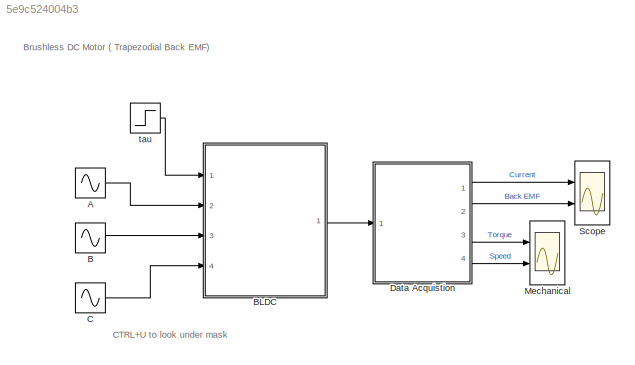
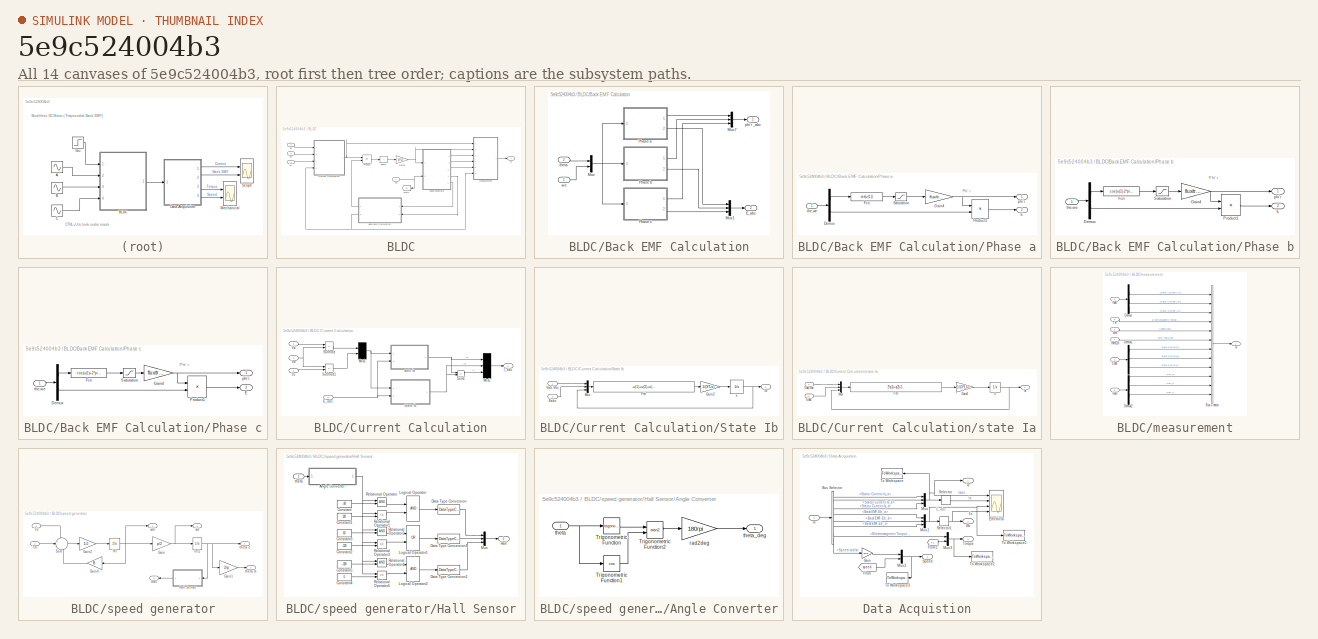
[diagram: thumbnail index - all 14 canvases of the model, root first then tree order]
MODEL slx_5e9c524004b3
KIND model
CONFIG AbsTol = auto
CONFIG EnableMultiTasking = off
CONFIG FixedStep = auto
CONFIG MaxStep = auto
CONFIG MinStep = auto
CONFIG RelTol = 1e-3
CONFIG SampleTimeConstraint = Unconstrained
CONFIG SolverName = VariableStepAuto
CONFIG StartTime = 0.0
CONFIG StopTime = 10.0
BLOCK [Sin] A
  Amplitude = 220*sqrt(2)
  Frequency = 2*pi*50
  Ports = [0, 1]
  SampleTime = Ts
BLOCK [Sin] B
  Amplitude = 220*sqrt(2)
  Frequency = 2*pi*50
  Phase = -2*pi/3
  Ports = [0, 1]
  SampleTime = Ts
BLOCK [SubSystem] BLDC
  Ports = [4, 1]
  RequestExecContextInheritance = off
BLOCK [SubSystem] BLDC/Back EMF Calculation
  Ports = [2, 2]
  RequestExecContextInheritance = off
BLOCK [Outport] BLDC/Back EMF Calculation/E_abc
  Port = 2
BLOCK [Mux] BLDC/Back EMF Calculation/Mux
  DisplayOption = bar
  Inputs = 2
  Ports = [2, 1]
BLOCK [Mux] BLDC/Back EMF Calculation/Mux1
  DisplayOption = bar
  Inputs = 3
  Ports = [3, 1]
BLOCK [Mux] BLDC/Back EMF Calculation/Mux7
  DisplayOption = bar
  Inputs = 3
  Ports = [3, 1]
BLOCK [SubSystem] BLDC/Back EMF Calculation/Phase a
  Ports = [1, 2]
  RequestExecContextInheritance = off
BLOCK [Demux] BLDC/Back EMF Calculation/Phase a/Demux
  DisplayOption = none
  Outputs = 2
  Ports = [1, 2]
BLOCK [Outport] BLDC/Back EMF Calculation/Phase a/E
  Port = 2
BLOCK [Fcn] BLDC/Back EMF Calculation/Phase a/Fcn
  Expr = cos(u(1))
BLOCK [Gain] BLDC/Back EMF Calculation/Phase a/Gain4
  Gain = flux/trap
  OutDataTypeStr = Inherit: Same as input
  ParamDataTypeStr = Inherit: Same as input
  SaturateOnIntegerOverflow = on
BLOCK [Product] BLDC/Back EMF Calculation/Phase a/Product1
  OutDataTypeStr = Inherit: Same as first input
  Ports = [2, 1]
  SaturateOnIntegerOverflow = on
BLOCK [Saturate] BLDC/Back EMF Calculation/Phase a/Saturation
  LowerLimit = -trap
  UpperLimit = trap
BLOCK [Outport] BLDC/Back EMF Calculation/Phase a/phi'r
BLOCK [Inport] BLDC/Back EMF Calculation/Phase a/the,we
BLOCK [SubSystem] BLDC/Back EMF Calculation/Phase b
  Ports = [1, 2]
  RequestExecContextInheritance = off
BLOCK [Demux] BLDC/Back EMF Calculation/Phase b/Demux
  DisplayOption = none
  Outputs = 2
  Ports = [1, 2]
BLOCK [Outport] BLDC/Back EMF Calculation/Phase b/E
  Port = 2
BLOCK [Fcn] BLDC/Back EMF Calculation/Phase b/Fcn
  Expr = cos(u(1)-2*pi/3)
BLOCK [Gain] BLDC/Back EMF Calculation/Phase b/Gain4
  Gain = flux/trap
  OutDataTypeStr = Inherit: Same as input
  ParamDataTypeStr = Inherit: Same as input
  SaturateOnIntegerOverflow = on
BLOCK [Product] BLDC/Back EMF Calculation/Phase b/Product1
  OutDataTypeStr = Inherit: Same as first input
  Ports = [2, 1]
  SaturateOnIntegerOverflow = on
BLOCK [Saturate] BLDC/Back EMF Calculation/Phase b/Saturation
  LowerLimit = -trap
  UpperLimit = trap
BLOCK [Outport] BLDC/Back EMF Calculation/Phase b/phi'r
BLOCK [Inport] BLDC/Back EMF Calculation/Phase b/the,we
BLOCK [SubSystem] BLDC/Back EMF Calculation/Phase c
  Ports = [1, 2]
  RequestExecContextInheritance = off
BLOCK [Demux] BLDC/Back EMF Calculation/Phase c/Demux
  DisplayOption = none
  Outputs = 2
  Ports = [1, 2]
BLOCK [Outport] BLDC/Back EMF Calculation/Phase c/E
  Port = 2
BLOCK [Fcn] BLDC/Back EMF Calculation/Phase c/Fcn
  Expr = cos(u(1)+2*pi/3)
BLOCK [Gain] BLDC/Back EMF Calculation/Phase c/Gain4
  Gain = flux/trap
  OutDataTypeStr = Inherit: Same as input
  ParamDataTypeStr = Inherit: Same as input
  SaturateOnIntegerOverflow = on
BLOCK [Product] BLDC/Back EMF Calculation/Phase c/Product1
  OutDataTypeStr = Inherit: Same as first input
  Ports = [2, 1]
  SaturateOnIntegerOverflow = on
BLOCK [Saturate] BLDC/Back EMF Calculation/Phase c/Saturation
  LowerLimit = -trap
  UpperLimit = trap
BLOCK [Outport] BLDC/Back EMF Calculation/Phase c/phi'r
BLOCK [Inport] BLDC/Back EMF Calculation/Phase c/the,we
BLOCK [Outport] BLDC/Back EMF Calculation/phi'r _abc
BLOCK [Inport] BLDC/Back EMF Calculation/theta
  Port = 2
BLOCK [Inport] BLDC/Back EMF Calculation/we
BLOCK [SubSystem] BLDC/Current Calculation
  Ports = [4, 1]
  RequestExecContextInheritance = off
BLOCK [Inport] BLDC/Current Calculation/E_abc
  Port = 4
BLOCK [Outport] BLDC/Current Calculation/I_abc
BLOCK [Mux] BLDC/Current Calculation/Mux2
  DisplayOption = signals
  Inputs = 2
  Ports = [2, 1]
BLOCK [Mux] BLDC/Current Calculation/Mux5
  DisplayOption = signals
  Inputs = 3
  Ports = [3, 1]
BLOCK [SubSystem] BLDC/Current Calculation/State Ib
  Ports = [2, 1]
  RequestExecContextInheritance = off
BLOCK [Inport] BLDC/Current Calculation/State Ib/Eabc
  Port = 2
BLOCK [Fcn] BLDC/Current Calculation/State Ib/Fcn
  Expr = -u(1)+u(2)+u(3)-2*u(4)+u(5)-3*Rs*u(6)
BLOCK [Gain] BLDC/Current Calculation/State Ib/Gain2
  Gain = 1/(3*Ls)
  OutDataTypeStr = Inherit: Same as input
  ParamDataTypeStr = Inherit: Same as input
  SaturateOnIntegerOverflow = on
BLOCK [Outport] BLDC/Current Calculation/State Ib/Ib
BLOCK [Mux] BLDC/Current Calculation/State Ib/Mux
  DisplayOption = bar
  Inputs = 3
  Ports = [3, 1]
BLOCK [Inport] BLDC/Current Calculation/State Ib/Vab,Vbc
BLOCK [Integrator] BLDC/Current Calculation/State Ib/s 
  Ports = [1, 1]
BLOCK [Sum] BLDC/Current Calculation/Subtract
  IconShape = rectangular
  Inputs = +-
  Ports = [2, 1]
BLOCK [Sum] BLDC/Current Calculation/Subtract1
  IconShape = rectangular
  Inputs = +-
  Ports = [2, 1]
BLOCK [Sum] BLDC/Current Calculation/Sum1
  IconShape = rectangular
  Inputs = --
  Ports = [2, 1]
  SaturateOnIntegerOverflow = on
BLOCK [Inport] BLDC/Current Calculation/Va
BLOCK [Inport] BLDC/Current Calculation/Vb
  Port = 2
BLOCK [Inport] BLDC/Current Calculation/Vc
  Port = 3
BLOCK [SubSystem] BLDC/Current Calculation/state Ia
  Ports = [2, 1]
  RequestExecContextInheritance = off
BLOCK [Inport] BLDC/Current Calculation/state Ia/Eabc
  Port = 2
BLOCK [Fcn] BLDC/Current Calculation/state Ia/Fcn
  Expr = 2*u(1)+u(2)-2*u(3)+u(4)+u(5)-3*Rs*u(6)
BLOCK [Gain] BLDC/Current Calculation/state Ia/Gain2
  Gain = 1/(3*Ls)
  OutDataTypeStr = Inherit: Same as input
  ParamDataTypeStr = Inherit: Same as input
  SaturateOnIntegerOverflow = on
BLOCK [Outport] BLDC/Current Calculation/state Ia/Ia
BLOCK [Mux] BLDC/Current Calculation/state Ia/Mux
  DisplayOption = bar
  Inputs = 3
  Ports = [3, 1]
BLOCK [Inport] BLDC/Current Calculation/state Ia/Vab,Vbc
BLOCK [Integrator] BLDC/Current Calculation/state Ia/s 
  Ports = [1, 1]
BLOCK [Gain] BLDC/Gain3
  Gain = p/2
  OutDataTypeStr = Inherit: Same as input
  ParamDataTypeStr = Inherit: Same as input
  SaturateOnIntegerOverflow = on
BLOCK [Goto] BLDC/Goto
  GotoTag = TL
  TagVisibility = global
BLOCK [Product] BLDC/Product
  OutDataTypeStr = Inherit: Same as first input
  Ports = [2, 1]
  SaturateOnIntegerOverflow = on
BLOCK [Sum] BLDC/Sum2
  IconShape = rectangular
  Inputs = +
  Ports = [1, 1]
  SaturateOnIntegerOverflow = on
BLOCK [Inport] BLDC/Tm
BLOCK [Inport] BLDC/Va
  Port = 2
BLOCK [Inport] BLDC/Vb
  Port = 3
BLOCK [Inport] BLDC/Vc
  Port = 4
BLOCK [Outport] BLDC/m
BLOCK [SubSystem] BLDC/measurement
  Ports = [6, 1]
  RequestExecContextInheritance = off
BLOCK [BusCreator] BLDC/measurement/Bus Creator
  DisplayOption = bar
  InheritFromInputs = on
  Inputs = 12
  Ports = [12, 1]
BLOCK [Demux] BLDC/measurement/Demux
  Outputs = 3
  Ports = [1, 3]
BLOCK [Demux] BLDC/measurement/Demux1
  Outputs = 3
  Ports = [1, 3]
BLOCK [Demux] BLDC/measurement/Demux2
  Outputs = 3
  Ports = [1, 3]
BLOCK [Inport] BLDC/measurement/Eabc
  Port = 6
BLOCK [Inport] BLDC/measurement/Hall
  Port = 5
BLOCK [Inport] BLDC/measurement/Iabc
BLOCK [Inport] BLDC/measurement/Te
  Port = 2
BLOCK [Outport] BLDC/measurement/m
BLOCK [Inport] BLDC/measurement/theta_m
  Port = 4
BLOCK [Inport] BLDC/measurement/wm
  Port = 3
BLOCK [SubSystem] BLDC/speed generator
  Ports = [2, 5]
  RequestExecContextInheritance = off
BLOCK [Gain] BLDC/speed generator/Gain
  Gain = p/2
  OutDataTypeStr = Inherit: Same as input
  ParamDataTypeStr = Inherit: Same as input
  SaturateOnIntegerOverflow = on
BLOCK [Gain] BLDC/speed generator/Gain1
  Gain = 2/p
  OutDataTypeStr = Inherit: Same as input
  ParamDataTypeStr = Inherit: Same as input
  SaturateOnIntegerOverflow = on
BLOCK [Gain] BLDC/speed generator/Gain2
  Gain = 1/J
  OutDataTypeStr = Inherit: Same as input
  ParamDataTypeStr = Inherit: Same as input
  SaturateOnIntegerOverflow = on
BLOCK [Gain] BLDC/speed generator/Gain4
  Gain = B
  OutDataTypeStr = Inherit: Same as input
  ParamDataTypeStr = Inherit: Same as input
  SaturateOnIntegerOverflow = on
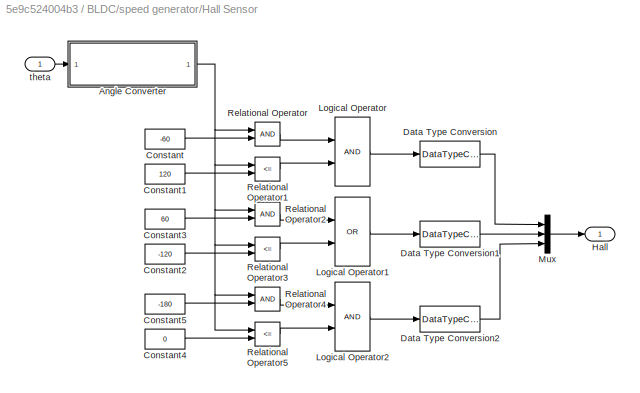
BLOCK [SubSystem] BLDC/speed generator/Hall Sensor
  Ports = [1, 1]
  RequestExecContextInheritance = off
BLOCK [SubSystem] BLDC/speed generator/Hall Sensor/Angle Converter
  Ports = [1, 1]
  RequestExecContextInheritance = off
BLOCK [Trigonometry] BLDC/speed generator/Hall Sensor/Angle Converter/Trigonometric Function
  Ports = [1, 1]
BLOCK [Trigonometry] BLDC/speed generator/Hall Sensor/Angle Converter/Trigonometric Function1
  Operator = cos
  Ports = [1, 1]
BLOCK [Trigonometry] BLDC/speed generator/Hall Sensor/Angle Converter/Trigonometric Function2
  Operator = atan2
  Ports = [2, 1]
BLOCK [Gain] BLDC/speed generator/Hall Sensor/Angle Converter/rad2deg
  Gain = 180/pi
BLOCK [Inport] BLDC/speed generator/Hall Sensor/Angle Converter/theta
BLOCK [Outport] BLDC/speed generator/Hall Sensor/Angle Converter/theta_deg
BLOCK [Constant] BLDC/speed generator/Hall Sensor/Constant
  Value = -60
BLOCK [Constant] BLDC/speed generator/Hall Sensor/Constant1
  Value = 120
BLOCK [Constant] BLDC/speed generator/Hall Sensor/Constant2
  Value = -120
BLOCK [Constant] BLDC/speed generator/Hall Sensor/Constant3
  Value = 60
BLOCK [Constant] BLDC/speed generator/Hall Sensor/Constant4
  Value = 0
BLOCK [Constant] BLDC/speed generator/Hall Sensor/Constant5
  Value = -180
BLOCK [DataTypeConversion] BLDC/speed generator/Hall Sensor/Data Type Conversion
  RndMeth = Floor
  SaturateOnIntegerOverflow = off
BLOCK [DataTypeConversion] BLDC/speed generator/Hall Sensor/Data Type Conversion1
  RndMeth = Floor
  SaturateOnIntegerOverflow = off
BLOCK [DataTypeConversion] BLDC/speed generator/Hall Sensor/Data Type Conversion2
  RndMeth = Floor
  SaturateOnIntegerOverflow = off
BLOCK [Outport] BLDC/speed generator/Hall Sensor/Hall
BLOCK [Logic] BLDC/speed generator/Hall Sensor/Logical Operator
  AllPortsSameDT = off
  OutDataTypeStr = boolean
  Ports = [2, 1]
BLOCK [Logic] BLDC/speed generator/Hall Sensor/Logical Operator1
  AllPortsSameDT = off
  Operator = OR
  OutDataTypeStr = boolean
  Ports = [2, 1]
BLOCK [Logic] BLDC/speed generator/Hall Sensor/Logical Operator2
  AllPortsSameDT = off
  OutDataTypeStr = boolean
  Ports = [2, 1]
BLOCK [Mux] BLDC/speed generator/Hall Sensor/Mux
  DisplayOption = bar
  Inputs = 3
  Ports = [3, 1]
BLOCK [RelationalOperator] BLDC/speed generator/Hall Sensor/Relational Operator
  InputSameDT = off
  OutDataTypeStr = boolean
  Ports = [2, 1]
BLOCK [RelationalOperator] BLDC/speed generator/Hall Sensor/Relational Operator1
  InputSameDT = off
  Operator = <=
  OutDataTypeStr = boolean
  Ports = [2, 1]
BLOCK [RelationalOperator] BLDC/speed generator/Hall Sensor/Relational Operator2
  InputSameDT = off
  OutDataTypeStr = boolean
  Ports = [2, 1]
BLOCK [RelationalOperator] BLDC/speed generator/Hall Sensor/Relational Operator3
  InputSameDT = off
  Operator = <=
  OutDataTypeStr = boolean
  Ports = [2, 1]
BLOCK [RelationalOperator] BLDC/speed generator/Hall Sensor/Relational Operator4
  InputSameDT = off
  OutDataTypeStr = boolean
  Ports = [2, 1]
BLOCK [RelationalOperator] BLDC/speed generator/Hall Sensor/Relational Operator5
  InputSameDT = off
  Operator = <=
  OutDataTypeStr = boolean
  Ports = [2, 1]
BLOCK [Inport] BLDC/speed generator/Hall Sensor/theta
BLOCK [Integrator] BLDC/speed generator/Int
  Ports = [1, 1]
BLOCK [Integrator] BLDC/speed generator/Int1
  Ports = [1, 1]
BLOCK [Sum] BLDC/speed generator/Sum
  InputSameDT = on
  Inputs = +--
  OutDataTypeStr = Inherit: Same as first input
  Ports = [3, 1]
  SaturateOnIntegerOverflow = on
BLOCK [Inport] BLDC/speed generator/Te
BLOCK [Inport] BLDC/speed generator/Tm
  Port = 2
BLOCK [Outport] BLDC/speed generator/hall
  Port = 3
BLOCK [Outport] BLDC/speed generator/theta e
  Port = 4
BLOCK [Outport] BLDC/speed generator/theta m
  Port = 2
BLOCK [Outport] BLDC/speed generator/we
  Port = 5
BLOCK [Outport] BLDC/speed generator/wm
BLOCK [Sin] C
  Amplitude = 220*sqrt(2)
  Frequency = 2*pi*50
  Phase = 2*pi/3
  Ports = [0, 1]
  SampleTime = Ts
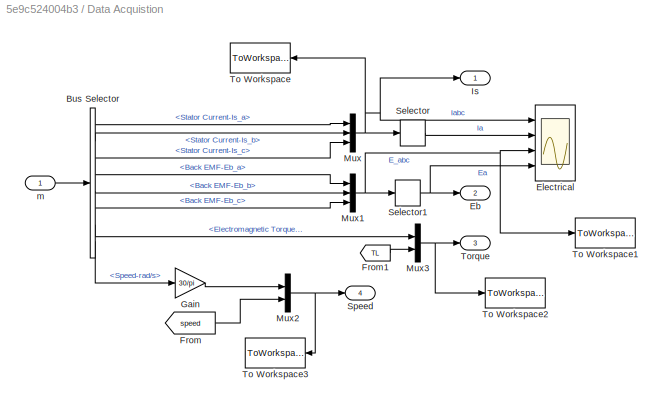
BLOCK [SubSystem] Data Acquistion
  Ports = [1, 4]
  RequestExecContextInheritance = off
BLOCK [BusSelector] Data Acquistion/Bus Selector
  OutputSignals = Stator Current-Is_a,Stator Current-Is_b,Stator Current-Is_c,Back EMF-Eb_a,Back EMF-Eb_b,Back EMF-Eb_c,Electromagnetic Torque-Nm,Speed-rad/s
  Ports = [1, 8]
BLOCK [Outport] Data Acquistion/Eb
  Port = 2
BLOCK [Scope] Data Acquistion/Electrical
  Floating = off
  NumInputPorts = 4
  Ports = [4]
  ScopeSpecificationString = C++SS(StrPVP('Location','[5, 49, 1371, 737]'),StrPVP('Open','off'),StrPVP('ZoomMode','yonly'),MxPVP('AxesTitles',54,'struct(''axes1'',''%<SignalLabel>'',''axes2'',''%<SignalLabel>'',''axes3'',''%<SignalLabel>'',''axes4'',''%<SignalLabel>'')'),StrPVP('TimeRange','1'),StrPVP('YMin','-40~-20~-100~-100'),StrPVP('YMax','40~30~100~100'),StrPVP('SaveName','ScopeData3'),StrPVP('DataFormat','StructureWithT...<+136ch>
BLOCK [From] Data Acquistion/From
  GotoTag = speed
BLOCK [From] Data Acquistion/From1
  GotoTag = TL
  TagVisibility = global
BLOCK [Gain] Data Acquistion/Gain
  Gain = 30/pi
BLOCK [Outport] Data Acquistion/Is
BLOCK [Mux] Data Acquistion/Mux
  DisplayOption = bar
  Inputs = 3
  Ports = [3, 1]
BLOCK [Mux] Data Acquistion/Mux1
  DisplayOption = bar
  Inputs = 3
  Ports = [3, 1]
BLOCK [Mux] Data Acquistion/Mux2
  DisplayOption = bar
  Inputs = 2
  Ports = [2, 1]
BLOCK [Mux] Data Acquistion/Mux3
  DisplayOption = bar
  Inputs = 2
  Ports = [2, 1]
BLOCK [Selector] Data Acquistion/Selector
  IndexOptions = Index vector (dialog)
  Indices = [1 ]
  InputPortWidth = 3
  OutputSizes = 1
  Ports = [1, 1]
BLOCK [Selector] Data Acquistion/Selector1
  IndexOptions = Index vector (dialog)
  Indices = [1 ]
  InputPortWidth = 3
  OutputSizes = 1
  Ports = [1, 1]
BLOCK [Outport] Data Acquistion/Speed
  Port = 4
BLOCK [ToWorkspace] Data Acquistion/To Workspace
  MaxDataPoints = inf
  Ports = [1]
  SampleTime = Ts
  VariableName = Iabc_pi
BLOCK [ToWorkspace] Data Acquistion/To Workspace1
  MaxDataPoints = inf
  Ports = [1]
  SampleTime = Ts
  VariableName = Eabc_pi
BLOCK [ToWorkspace] Data Acquistion/To Workspace2
  MaxDataPoints = inf
  Ports = [1]
  SampleTime = Ts
  VariableName = Te_pi
BLOCK [ToWorkspace] Data Acquistion/To Workspace3
  MaxDataPoints = inf
  Ports = [1]
  SampleTime = Ts
  VariableName = N_pi
BLOCK [Outport] Data Acquistion/Torque
  Port = 3
BLOCK [Inport] Data Acquistion/m
BLOCK [Scope] Mechanical
  Floating = off
  NumInputPorts = 2
  Ports = [2]
  ScopeSpecificationString = Simulink.scopes.TimeScopeBlockCfg('CurrentConfiguration', extmgr.ConfigurationSet(extmgr.Configuration('Core','General UI',true),extmgr.Configuration('Core','Source UI',true),extmgr.Configuration('Sources','WiredSimulink',true,'DataLoggingVariableName','ScopeData1','DataLoggingSaveFormat','StructureWithTime','DataLoggingDecimation','1','DataLoggingDecimateData',true),extmgr.Configuration('Visuals'...<+2355ch>
BLOCK [Scope] Scope
  Floating = off
  NumInputPorts = 2
  Ports = [2]
  ScopeSpecificationString = Simulink.scopes.TimeScopeBlockCfg('CurrentConfiguration', extmgr.ConfigurationSet(extmgr.Configuration('Core','General UI',true),extmgr.Configuration('Core','Source UI',true),extmgr.Configuration('Sources','WiredSimulink',true,'DataLoggingSaveFormat','StructureWithTime','DataLoggingDecimation','1','DataLoggingDecimateData',true),extmgr.Configuration('Visuals','Time Domain',true,'SerializedDisplays...<+2392ch>
BLOCK [Step] tau
  After = 10
  SampleTime = 0
  Time = 0.5
ANNOTATION (root): Brushless DC Motor ( Trapezodial Back EMF)
ANNOTATION (root): CTRL+U to look under mask
ANNOTATION BLDC/Back EMF Calculation/Phase a: Phi' r
ANNOTATION BLDC/Back EMF Calculation/Phase b: Phi' r
ANNOTATION BLDC/Back EMF Calculation/Phase c: Phi' r
LINE A:1 -> BLDC:2
LINE B:1 -> BLDC:3
LINE BLDC/Back EMF Calculation/Mux1:1 -> BLDC/Back EMF Calculation/E_abc:1
LINE BLDC/Back EMF Calculation/Mux7:1 -> BLDC/Back EMF Calculation/phi'r _abc:1
NET BLDC/Back EMF Calculation/Mux:1 -> BLDC/Back EMF Calculation/Phase a:1, BLDC/Back EMF Calculation/Phase b:1, BLDC/Back EMF Calculation/Phase c:1
LINE BLDC/Back EMF Calculation/Phase a/Demux:1 -> BLDC/Back EMF Calculation/Phase a/Fcn:1
LINE BLDC/Back EMF Calculation/Phase a/Demux:2 -> BLDC/Back EMF Calculation/Phase a/Product1:2
LINE BLDC/Back EMF Calculation/Phase a/Fcn:1 -> BLDC/Back EMF Calculation/Phase a/Saturation:1
NET BLDC/Back EMF Calculation/Phase a/Gain4:1 -> BLDC/Back EMF Calculation/Phase a/Product1:1, BLDC/Back EMF Calculation/Phase a/phi'r:1
LINE BLDC/Back EMF Calculation/Phase a/Product1:1 -> BLDC/Back EMF Calculation/Phase a/E:1
LINE BLDC/Back EMF Calculation/Phase a/Saturation:1 -> BLDC/Back EMF Calculation/Phase a/Gain4:1
LINE BLDC/Back EMF Calculation/Phase a/the,we:1 -> BLDC/Back EMF Calculation/Phase a/Demux:1
LINE BLDC/Back EMF Calculation/Phase a:1 -> BLDC/Back EMF Calculation/Mux7:1
LINE BLDC/Back EMF Calculation/Phase a:2 -> BLDC/Back EMF Calculation/Mux1:1
LINE BLDC/Back EMF Calculation/Phase b/Demux:1 -> BLDC/Back EMF Calculation/Phase b/Fcn:1
LINE BLDC/Back EMF Calculation/Phase b/Demux:2 -> BLDC/Back EMF Calculation/Phase b/Product1:2
LINE BLDC/Back EMF Calculation/Phase b/Fcn:1 -> BLDC/Back EMF Calculation/Phase b/Saturation:1
NET BLDC/Back EMF Calculation/Phase b/Gain4:1 -> BLDC/Back EMF Calculation/Phase b/Product1:1, BLDC/Back EMF Calculation/Phase b/phi'r:1
LINE BLDC/Back EMF Calculation/Phase b/Product1:1 -> BLDC/Back EMF Calculation/Phase b/E:1
LINE BLDC/Back EMF Calculation/Phase b/Saturation:1 -> BLDC/Back EMF Calculation/Phase b/Gain4:1
LINE BLDC/Back EMF Calculation/Phase b/the,we:1 -> BLDC/Back EMF Calculation/Phase b/Demux:1
LINE BLDC/Back EMF Calculation/Phase b:1 -> BLDC/Back EMF Calculation/Mux7:2
LINE BLDC/Back EMF Calculation/Phase b:2 -> BLDC/Back EMF Calculation/Mux1:2
LINE BLDC/Back EMF Calculation/Phase c/Demux:1 -> BLDC/Back EMF Calculation/Phase c/Fcn:1
LINE BLDC/Back EMF Calculation/Phase c/Demux:2 -> BLDC/Back EMF Calculation/Phase c/Product1:2
LINE BLDC/Back EMF Calculation/Phase c/Fcn:1 -> BLDC/Back EMF Calculation/Phase c/Saturation:1
NET BLDC/Back EMF Calculation/Phase c/Gain4:1 -> BLDC/Back EMF Calculation/Phase c/Product1:1, BLDC/Back EMF Calculation/Phase c/phi'r:1
LINE BLDC/Back EMF Calculation/Phase c/Product1:1 -> BLDC/Back EMF Calculation/Phase c/E:1
LINE BLDC/Back EMF Calculation/Phase c/Saturation:1 -> BLDC/Back EMF Calculation/Phase c/Gain4:1
LINE BLDC/Back EMF Calculation/Phase c/the,we:1 -> BLDC/Back EMF Calculation/Phase c/Demux:1
LINE BLDC/Back EMF Calculation/Phase c:1 -> BLDC/Back EMF Calculation/Mux7:3
LINE BLDC/Back EMF Calculation/Phase c:2 -> BLDC/Back EMF Calculation/Mux1:3
LINE BLDC/Back EMF Calculation/theta:1 -> BLDC/Back EMF Calculation/Mux:1
LINE BLDC/Back EMF Calculation/we:1 -> BLDC/Back EMF Calculation/Mux:2
LINE BLDC/Back EMF Calculation:1 -> BLDC/Product:2
NET BLDC/Back EMF Calculation:2 -> BLDC/Current Calculation:4, BLDC/measurement:6
NET BLDC/Current Calculation/E_abc:1 -> BLDC/Current Calculation/State Ib:2, BLDC/Current Calculation/state Ia:2
NET BLDC/Current Calculation/Mux2:1 -> BLDC/Current Calculation/State Ib:1, BLDC/Current Calculation/state Ia:1
LINE BLDC/Current Calculation/Mux5:1 -> BLDC/Current Calculation/I_abc:1
LINE BLDC/Current Calculation/State Ib/Eabc:1 -> BLDC/Current Calculation/State Ib/Mux:2
LINE BLDC/Current Calculation/State Ib/Fcn:1 -> BLDC/Current Calculation/State Ib/Gain2:1
LINE BLDC/Current Calculation/State Ib/Gain2:1 -> BLDC/Current Calculation/State Ib/s :1
LINE BLDC/Current Calculation/State Ib/Mux:1 -> BLDC/Current Calculation/State Ib/Fcn:1
LINE BLDC/Current Calculation/State Ib/Vab,Vbc:1 -> BLDC/Current Calculation/State Ib/Mux:1
NET BLDC/Current Calculation/State Ib/s :1 -> BLDC/Current Calculation/State Ib/Ib:1, BLDC/Current Calculation/State Ib/Mux:3
NET BLDC/Current Calculation/State Ib:1 -> BLDC/Current Calculation/Mux5:2, BLDC/Current Calculation/Sum1:2
LINE BLDC/Current Calculation/Subtract1:1 -> BLDC/Current Calculation/Mux2:2
LINE BLDC/Current Calculation/Subtract:1 -> BLDC/Current Calculation/Mux2:1
LINE BLDC/Current Calculation/Sum1:1 -> BLDC/Current Calculation/Mux5:3
LINE BLDC/Current Calculation/Va:1 -> BLDC/Current Calculation/Subtract:1
NET BLDC/Current Calculation/Vb:1 -> BLDC/Current Calculation/Subtract1:1, BLDC/Current Calculation/Subtract:2
LINE BLDC/Current Calculation/Vc:1 -> BLDC/Current Calculation/Subtract1:2
LINE BLDC/Current Calculation/state Ia/Eabc:1 -> BLDC/Current Calculation/state Ia/Mux:2
LINE BLDC/Current Calculation/state Ia/Fcn:1 -> BLDC/Current Calculation/state Ia/Gain2:1
LINE BLDC/Current Calculation/state Ia/Gain2:1 -> BLDC/Current Calculation/state Ia/s :1
LINE BLDC/Current Calculation/state Ia/Mux:1 -> BLDC/Current Calculation/state Ia/Fcn:1
LINE BLDC/Current Calculation/state Ia/Vab,Vbc:1 -> BLDC/Current Calculation/state Ia/Mux:1
NET BLDC/Current Calculation/state Ia/s :1 -> BLDC/Current Calculation/state Ia/Ia:1, BLDC/Current Calculation/state Ia/Mux:3
NET BLDC/Current Calculation/state Ia:1 -> BLDC/Current Calculation/Mux5:1, BLDC/Current Calculation/Sum1:1
NET BLDC/Current Calculation:1 -> BLDC/Product:1, BLDC/measurement:1
NET BLDC/Gain3:1 -> BLDC/measurement:2, BLDC/speed generator:1
LINE BLDC/Product:1 -> BLDC/Sum2:1
LINE BLDC/Sum2:1 -> BLDC/Gain3:1
NET BLDC/Tm:1 -> BLDC/Goto:1, BLDC/speed generator:2
LINE BLDC/Va:1 -> BLDC/Current Calculation:1
LINE BLDC/Vb:1 -> BLDC/Current Calculation:2
LINE BLDC/Vc:1 -> BLDC/Current Calculation:3
LINE BLDC/measurement/Bus Creator:1 -> BLDC/measurement/m:1
LINE BLDC/measurement/Demux1:1 -> BLDC/measurement/Bus Creator:7
LINE BLDC/measurement/Demux1:2 -> BLDC/measurement/Bus Creator:8
LINE BLDC/measurement/Demux1:3 -> BLDC/measurement/Bus Creator:9
LINE BLDC/measurement/Demux2:1 -> BLDC/measurement/Bus Creator:10
LINE BLDC/measurement/Demux2:2 -> BLDC/measurement/Bus Creator:11
LINE BLDC/measurement/Demux2:3 -> BLDC/measurement/Bus Creator:12
LINE BLDC/measurement/Demux:1 -> BLDC/measurement/Bus Creator:1
LINE BLDC/measurement/Demux:2 -> BLDC/measurement/Bus Creator:2
LINE BLDC/measurement/Demux:3 -> BLDC/measurement/Bus Creator:3
LINE BLDC/measurement/Eabc:1 -> BLDC/measurement/Demux1:1
LINE BLDC/measurement/Hall:1 -> BLDC/measurement/Demux2:1
LINE BLDC/measurement/Iabc:1 -> BLDC/measurement/Demux:1
LINE BLDC/measurement/Te:1 -> BLDC/measurement/Bus Creator:4
LINE BLDC/measurement/theta_m:1 -> BLDC/measurement/Bus Creator:6
LINE BLDC/measurement/wm:1 -> BLDC/measurement/Bus Creator:5
LINE BLDC/measurement:1 -> BLDC/m:1
LINE BLDC/speed generator/Gain1:1 -> BLDC/speed generator/theta m:1
LINE BLDC/speed generator/Gain2:1 -> BLDC/speed generator/Int:1
LINE BLDC/speed generator/Gain4:1 -> BLDC/speed generator/Sum:3
NET BLDC/speed generator/Gain:1 -> BLDC/speed generator/Int1:1, BLDC/speed generator/we:1
LINE BLDC/speed generator/Hall Sensor/Angle Converter/Trigonometric Function1:1 -> BLDC/speed generator/Hall Sensor/Angle Converter/Trigonometric Function2:2
LINE BLDC/speed generator/Hall Sensor/Angle Converter/Trigonometric Function2:1 -> BLDC/speed generator/Hall Sensor/Angle Converter/rad2deg:1
LINE BLDC/speed generator/Hall Sensor/Angle Converter/Trigonometric Function:1 -> BLDC/speed generator/Hall Sensor/Angle Converter/Trigonometric Function2:1
LINE BLDC/speed generator/Hall Sensor/Angle Converter/rad2deg:1 -> BLDC/speed generator/Hall Sensor/Angle Converter/theta_deg:1
NET BLDC/speed generator/Hall Sensor/Angle Converter/theta:1 -> BLDC/speed generator/Hall Sensor/Angle Converter/Trigonometric Function1:1, BLDC/speed generator/Hall Sensor/Angle Converter/Trigonometric Function:1
NET BLDC/speed generator/Hall Sensor/Angle Converter:1 -> BLDC/speed generator/Hall Sensor/Relational Operator1:1, BLDC/speed generator/Hall Sensor/Relational Operator2:1, BLDC/speed generator/Hall Sensor/Relational Operator3:1, BLDC/speed generator/Hall Sensor/Relational Operator4:1, BLDC/speed generator/Hall Sensor/Relational Operator5:1, BLDC/speed generator/Hall Sensor/Relational Operator:1
LINE BLDC/speed generator/Hall Sensor/Constant1:1 -> BLDC/speed generator/Hall Sensor/Relational Operator1:2
LINE BLDC/speed generator/Hall Sensor/Constant2:1 -> BLDC/speed generator/Hall Sensor/Relational Operator3:2
LINE BLDC/speed generator/Hall Sensor/Constant3:1 -> BLDC/speed generator/Hall Sensor/Relational Operator2:2
LINE BLDC/speed generator/Hall Sensor/Constant4:1 -> BLDC/speed generator/Hall Sensor/Relational Operator5:2
LINE BLDC/speed generator/Hall Sensor/Constant5:1 -> BLDC/speed generator/Hall Sensor/Relational Operator4:2
LINE BLDC/speed generator/Hall Sensor/Constant:1 -> BLDC/speed generator/Hall Sensor/Relational Operator:2
LINE BLDC/speed generator/Hall Sensor/Data Type Conversion1:1 -> BLDC/speed generator/Hall Sensor/Mux:2
LINE BLDC/speed generator/Hall Sensor/Data Type Conversion2:1 -> BLDC/speed generator/Hall Sensor/Mux:3
LINE BLDC/speed generator/Hall Sensor/Data Type Conversion:1 -> BLDC/speed generator/Hall Sensor/Mux:1
LINE BLDC/speed generator/Hall Sensor/Logical Operator1:1 -> BLDC/speed generator/Hall Sensor/Data Type Conversion1:1
LINE BLDC/speed generator/Hall Sensor/Logical Operator2:1 -> BLDC/speed generator/Hall Sensor/Data Type Conversion2:1
LINE BLDC/speed generator/Hall Sensor/Logical Operator:1 -> BLDC/speed generator/Hall Sensor/Data Type Conversion:1
LINE BLDC/speed generator/Hall Sensor/Mux:1 -> BLDC/speed generator/Hall Sensor/Hall:1
LINE BLDC/speed generator/Hall Sensor/Relational Operator1:1 -> BLDC/speed generator/Hall Sensor/Logical Operator:2
LINE BLDC/speed generator/Hall Sensor/Relational Operator2:1 -> BLDC/speed generator/Hall Sensor/Logical Operator1:1
LINE BLDC/speed generator/Hall Sensor/Relational Operator3:1 -> BLDC/speed generator/Hall Sensor/Logical Operator1:2
LINE BLDC/speed generator/Hall Sensor/Relational Operator4:1 -> BLDC/speed generator/Hall Sensor/Logical Operator2:1
LINE BLDC/speed generator/Hall Sensor/Relational Operator5:1 -> BLDC/speed generator/Hall Sensor/Logical Operator2:2
LINE BLDC/speed generator/Hall Sensor/Relational Operator:1 -> BLDC/speed generator/Hall Sensor/Logical Operator:1
LINE BLDC/speed generator/Hall Sensor/theta:1 -> BLDC/speed generator/Hall Sensor/Angle Converter:1
LINE BLDC/speed generator/Hall Sensor:1 -> BLDC/speed generator/hall:1
NET BLDC/speed generator/Int1:1 -> BLDC/speed generator/Gain1:1, BLDC/speed generator/Hall Sensor:1, BLDC/speed generator/theta e:1
NET BLDC/speed generator/Int:1 -> BLDC/speed generator/Gain4:1, BLDC/speed generator/Gain:1, BLDC/speed generator/wm:1
LINE BLDC/speed generator/Sum:1 -> BLDC/speed generator/Gain2:1
LINE BLDC/speed generator/Te:1 -> BLDC/speed generator/Sum:1
LINE BLDC/speed generator/Tm:1 -> BLDC/speed generator/Sum:2
LINE BLDC/speed generator:1 -> BLDC/measurement:3
LINE BLDC/speed generator:2 -> BLDC/measurement:4
LINE BLDC/speed generator:3 -> BLDC/measurement:5
LINE BLDC/speed generator:4 -> BLDC/Back EMF Calculation:2
LINE BLDC/speed generator:5 -> BLDC/Back EMF Calculation:1
LINE BLDC:1 -> Data Acquistion:1
LINE C:1 -> BLDC:4
LINE Data Acquistion/Bus Selector:1 -> Data Acquistion/Mux:1
LINE Data Acquistion/Bus Selector:2 -> Data Acquistion/Mux:2
LINE Data Acquistion/Bus Selector:3 -> Data Acquistion/Mux:3
LINE Data Acquistion/Bus Selector:4 -> Data Acquistion/Mux1:1
LINE Data Acquistion/Bus Selector:5 -> Data Acquistion/Mux1:2
LINE Data Acquistion/Bus Selector:6 -> Data Acquistion/Mux1:3
LINE Data Acquistion/Bus Selector:7 -> Data Acquistion/Mux3:1
LINE Data Acquistion/Bus Selector:8 -> Data Acquistion/Gain:1
LINE Data Acquistion/From1:1 -> Data Acquistion/Mux3:2
LINE Data Acquistion/From:1 -> Data Acquistion/Mux2:2
LINE Data Acquistion/Gain:1 -> Data Acquistion/Mux2:1
NET Data Acquistion/Mux1:1 -> Data Acquistion/Electrical:3, Data Acquistion/Selector1:1, Data Acquistion/To Workspace1:1
NET Data Acquistion/Mux2:1 -> Data Acquistion/Speed:1, Data Acquistion/To Workspace3:1
NET Data Acquistion/Mux3:1 -> Data Acquistion/To Workspace2:1, Data Acquistion/Torque:1
NET Data Acquistion/Mux:1 -> Data Acquistion/Electrical:1, Data Acquistion/Is:1, Data Acquistion/Selector:1, Data Acquistion/To Workspace:1
NET Data Acquistion/Selector1:1 -> Data Acquistion/Eb:1, Data Acquistion/Electrical:4
LINE Data Acquistion/Selector:1 -> Data Acquistion/Electrical:2
LINE Data Acquistion/m:1 -> Data Acquistion/Bus Selector:1
LINE Data Acquistion:1 -> Scope:1
LINE Data Acquistion:2 -> Scope:2
LINE Data Acquistion:3 -> Mechanical:1
LINE Data Acquistion:4 -> Mechanical:2
LINE tau:1 -> BLDC:1
note: NET lines group one-source signal fan-out (src -> all destinations, sorted); 1:1 wires keep LINE
